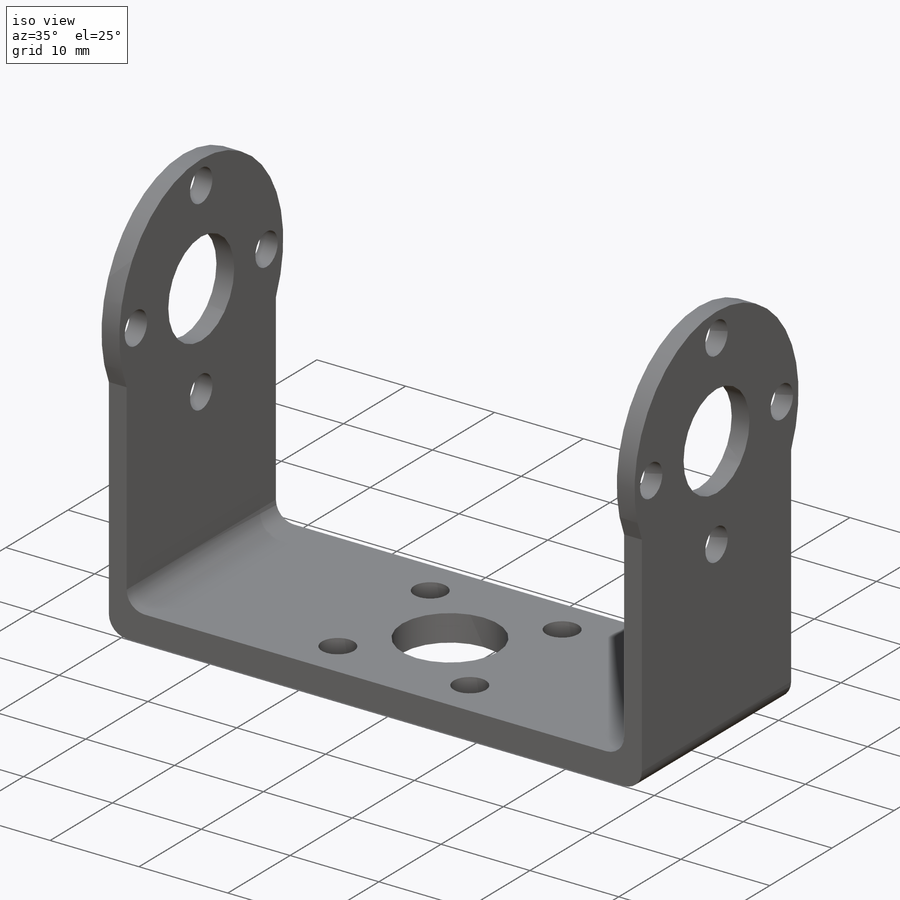
[diagram: iso view]
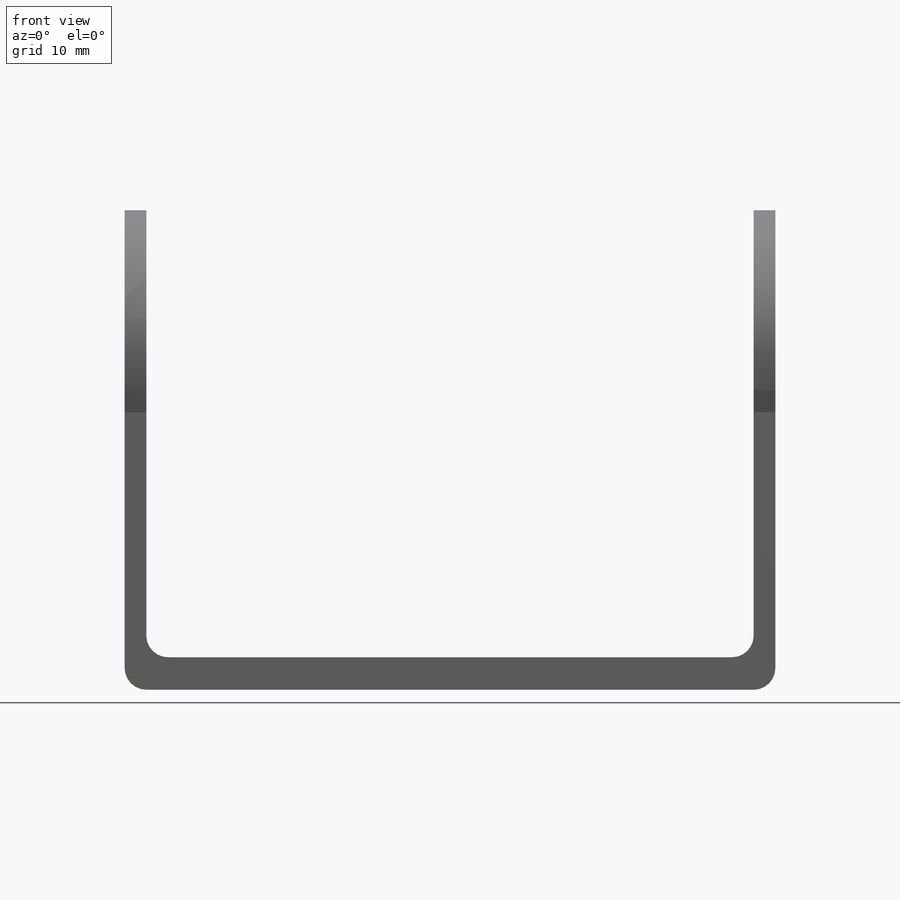
[diagram: front view]
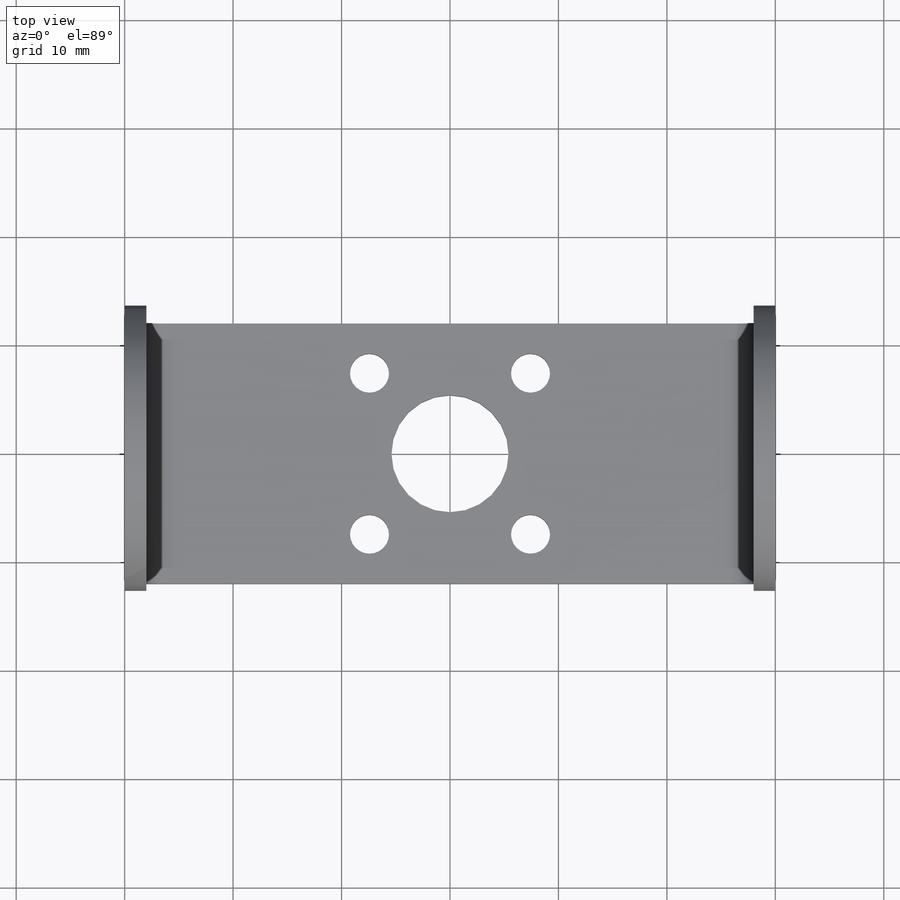
[diagram: top view]
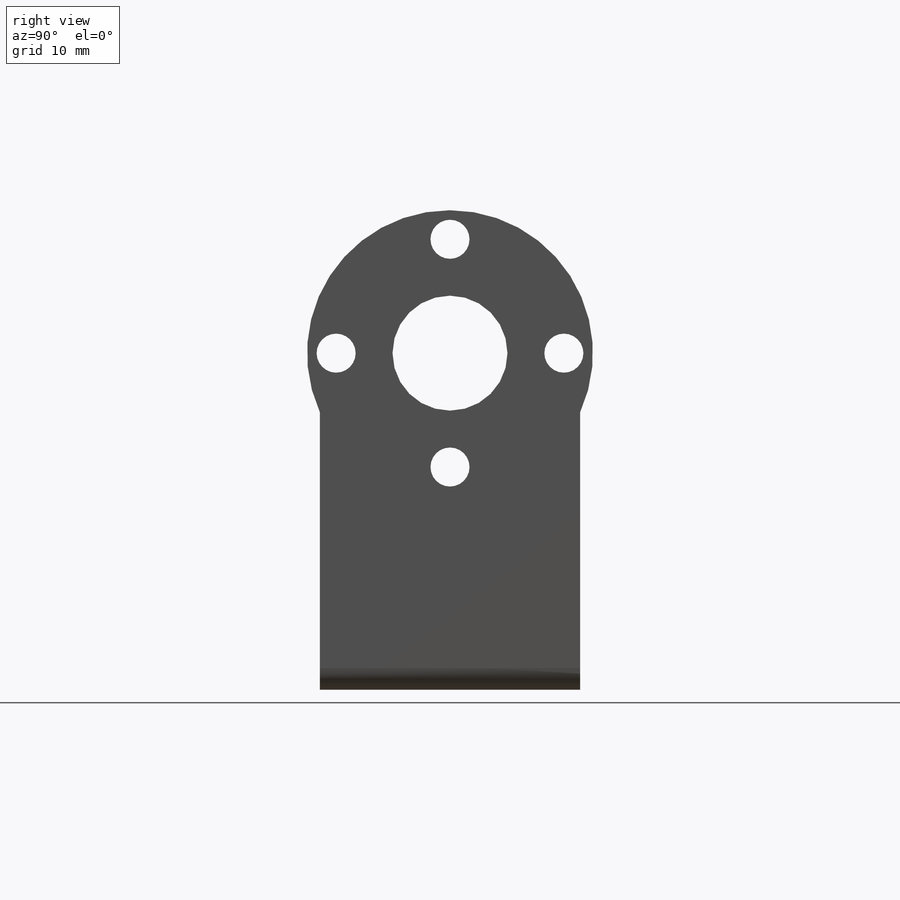
[diagram: right view]
SOLIDWORKS PART (.sldprt)
format: sldprt  version: not decoded by parser v0  size: 232,960 bytes
history: native  units: mm
features: sketch x5, plane x4, extrude x3, cut_extrude x2, material x1, mirror x1, fillet x1 (+8 scaffold rows collapsed)
feature tree (25):
  scaffold x8  (default folders/planes/origin — collapsed)
  material  "Material <sin especificar>"
  plane  "Alzado"
  plane  "Planta"
  plane  "Vista lateral"
  sketch  "Croquis1"  dims[D1=60.0mm D2=24.0mm]
  extrude  "Saliente-Extruir1"  Depth=2mm
  plane  "Plano1"
  sketch  "Croquis3"  dims[D1=10.6mm D3=26.36mm D2=30.04mm]
  extrude  "Saliente-Extruir2"  Depth=2mm
  sketch  "Croquis5"  dims[D1=21.0mm D2=3.6mm D3=4.0]
  cut_extrude  "Cortar-Extruir1"  [1 undecoded]
  mirror  "Simetría1"
  sketch  "Croquis6"
  extrude  "Saliente-Extruir3"  Depth=1mm
  sketch  "Croquis7"  dims[c1.D2=3.6mm c1.D3=10.8mm c1.D5=21.0mm c1.D1=~9.562804mm c2.D1=135.0deg c3.D1=~9.562804mm c4.D1=45.0deg c4.D4=4.0]
  cut_extrude  "Cortar-Extruir2"  [1 undecoded]
  fillet  "Redondeo1"  Radius=2mm
decode coverage: 8 of 12 modeling features carry decoded parameters
note: ~ marks probable driven/reference dimensions
note: 2 parameter values undecoded
note: suppression state not decoded; provenance and decode notes live in map.json
